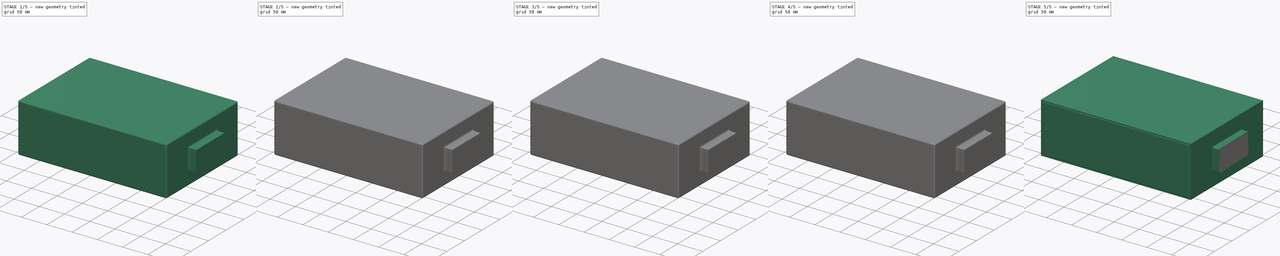
[diagram: build sequence overview — one tinted view per stage of 5, left to right]
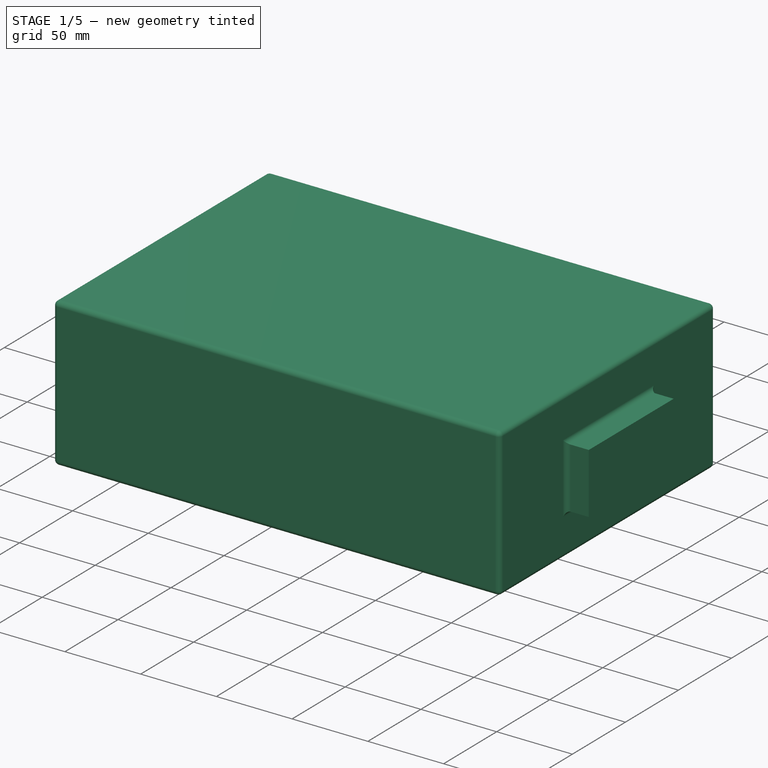
[diagram: stage 1 of 5 — iso view after this stage's code; geometry added in this stage tinted green]
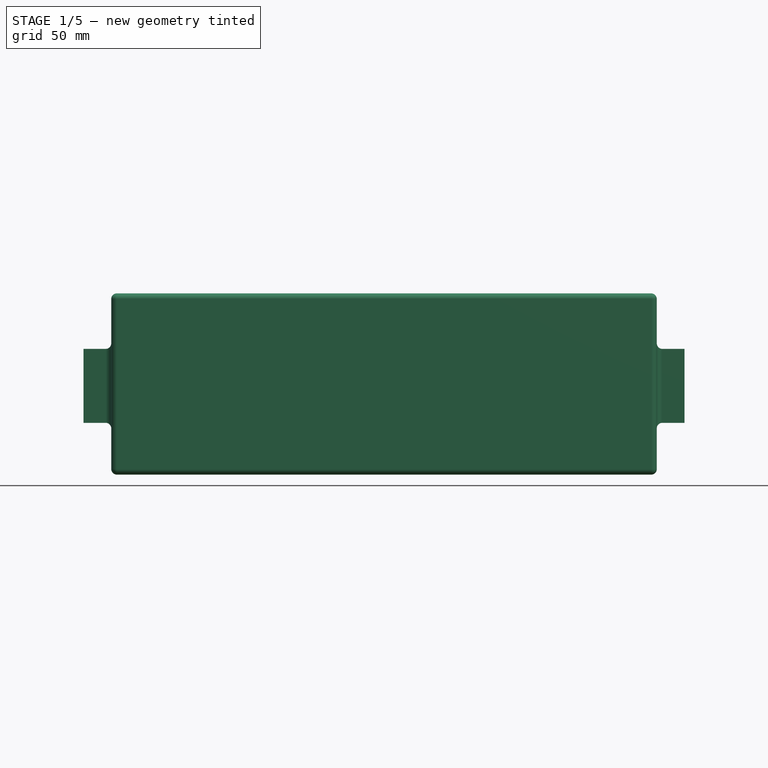
[diagram: stage 1 of 5 — front view after this stage's code; geometry added in this stage tinted green]
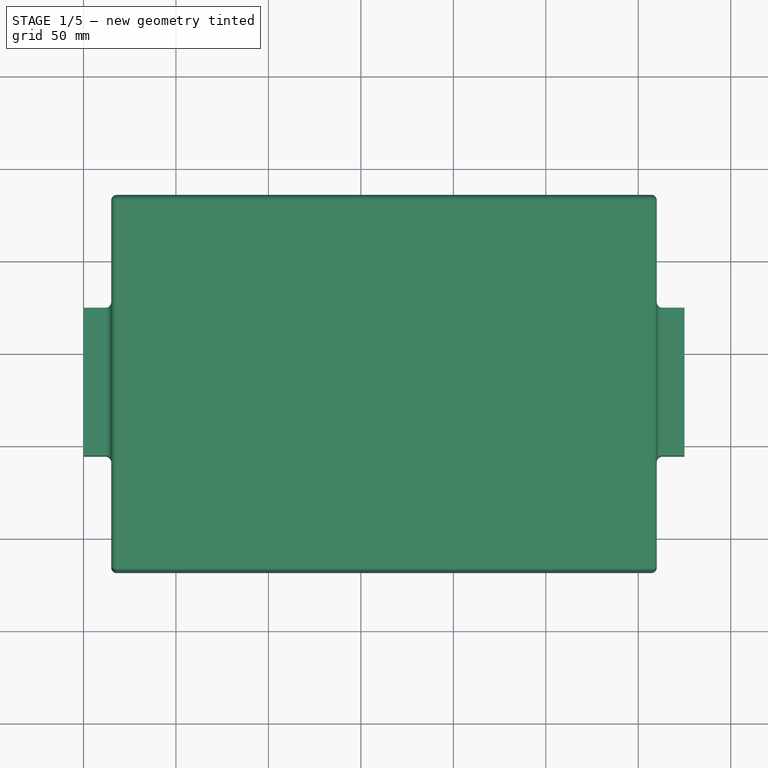
[diagram: stage 1 of 5 — top view after this stage's code; geometry added in this stage tinted green]
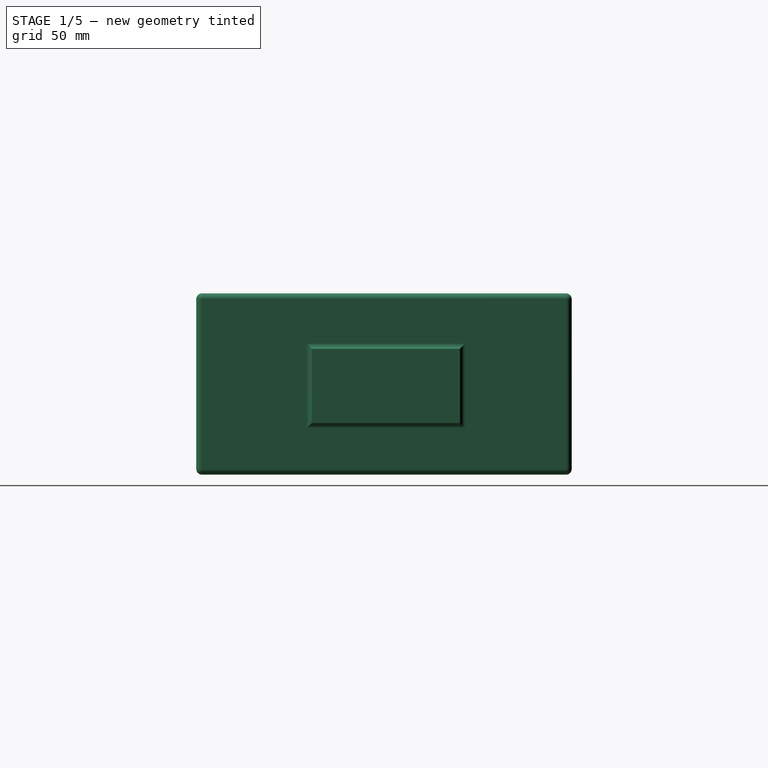
[diagram: stage 1 of 5 — right view after this stage's code; geometry added in this stage tinted green]
FCSTD DOCUMENT  (FreeCAD 1.0R39109 (Git))
Label: tesla-4680-battery-cooling
License: All rights reserved
LicenseURL: http://en.wikipedia.org/wiki/All_rights_reserved
objects: PartDesign::Body×7, Sketcher::SketchObject×4, PartDesign::FeatureBase×4, Part::FeaturePython×4, PartDesign::Pad×3, PartDesign::Fillet×2, PartDesign::Revolution×1, Part::MultiFuse×1, PartDesign::Thickness×1, Part::Cut×1
note: 49 computed .brp shape members not serialized (recipe doc carries the construction recipe); baked Part::Feature solids carry a one-line shape summary decoded from their .brp

FEATURE [PartDesign::Body] Body002  label="Körper001"
  AllowCompound = false
  Group = -> [Sketch001,Pad]
  Origin = -> Origin002
  Tip = -> Pad
FEATURE [Sketcher::SketchObject] Sketch002
  ArcFitTolerance = 1e-06
  AttachmentSupport = -> [XY_Plane003]
  FullyConstrained = true
  MakeInternals = false
  MapMode = 5
  sketch-geometry (4):
    g0: LineSegment StartX=-35 StartY=34.5 StartZ=0 EndX=-35 EndY=-168.5 EndZ=0
    g1: LineSegment StartX=-35 StartY=-168.5 StartZ=0 EndX=260 EndY=-168.5 EndZ=0
    g2: LineSegment StartX=260 StartY=-168.5 StartZ=0 EndX=260 EndY=34.5 EndZ=0
    g3: LineSegment StartX=260 StartY=34.5 StartZ=0 EndX=-35 EndY=34.5 EndZ=0
  constraints (12):
    c: Coincident(g0,g1)
    c: Coincident(g1,g2)
    c: Coincident(g2,g3)
    c: Coincident(g3,g0)
    c: Vertical(g0)
    c: Vertical(g2)
    c: Horizontal(g1)
    c: Horizontal(g3)
    c: DistanceX(g3,g3) = 295
    c: DistanceY(g2,g2) = 203
    c: Distance(g0,g-1) = 34.5
    c: Distance(g0,g-2) = 35
FEATURE [PartDesign::Pad] Pad001
  Direction = (0,0,1)
  Length = 90
  Length2 = 8
  Profile = -> Sketch002
  ReferenceAxis = -> Sketch002 [N_Axis]
  Suppressed = false
  Type = 4
FEATURE [Sketcher::SketchObject] Sketch003
  ArcFitTolerance = 1e-06
  AttachmentSupport = -> [YZ_Plane003]
  FullyConstrained = true
  MakeInternals = false
  MapMode = 5
  Placement = pos=(0,0,0) rot=(0.57735,0.57735,0.57735;2.0944rad)
  sketch-geometry (4):
    g0: LineSegment StartX=-106 StartY=60 StartZ=0 EndX=-106 EndY=20 EndZ=0
    g1: LineSegment StartX=-106 StartY=20 StartZ=0 EndX=-26 EndY=20 EndZ=0
    g2: LineSegment StartX=-26 StartY=20 StartZ=0 EndX=-26 EndY=60 EndZ=0
    g3: LineSegment StartX=-26 StartY=60 StartZ=0 EndX=-106 EndY=60 EndZ=0
  constraints (12):
    c: Coincident(g0,g1)
    c: Coincident(g1,g2)
    c: Coincident(g2,g3)
    c: Coincident(g3,g0)
    c: Vertical(g0)
    c: Vertical(g2)
    c: Horizontal(g1)
    c: Horizontal(g3)
    c: DistanceX(g3,g3) = 80
    c: DistanceY(g0,g0) = 40
    c: Distance(g2,g-1) = 60
    c: DistanceX(g1,g-1) = 26
FEATURE [PartDesign::Pad] Pad002
  BaseFeature = -> Pad001
  Direction = (1,0,0)
  Length = 275
  Length2 = 50
  Profile = -> Sketch003
  ReferenceAxis = -> Sketch003 [N_Axis]
  Suppressed = false
  Type = 4
FEATURE [PartDesign::Fillet] Fillet001
  Base = -> Pad002 [Face4,Face2,Face10,Face3,Face1,Face5]
  BaseFeature = -> Pad002
  Radius = 3
  SupportTransform = false
  Suppressed = false
  UseAllEdges = false
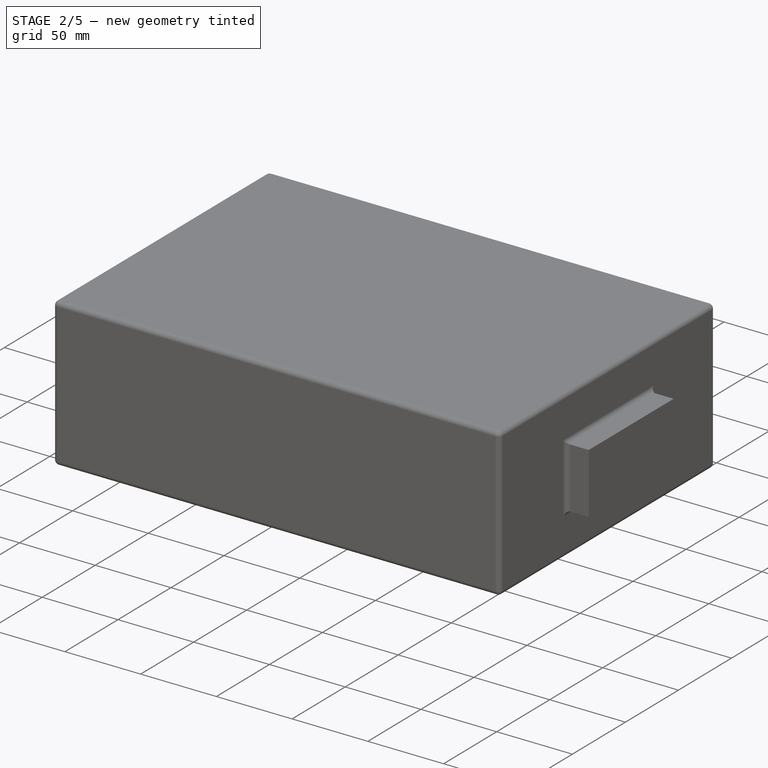
[diagram: stage 2 of 5 — iso view after this stage's code; geometry added in this stage tinted green]
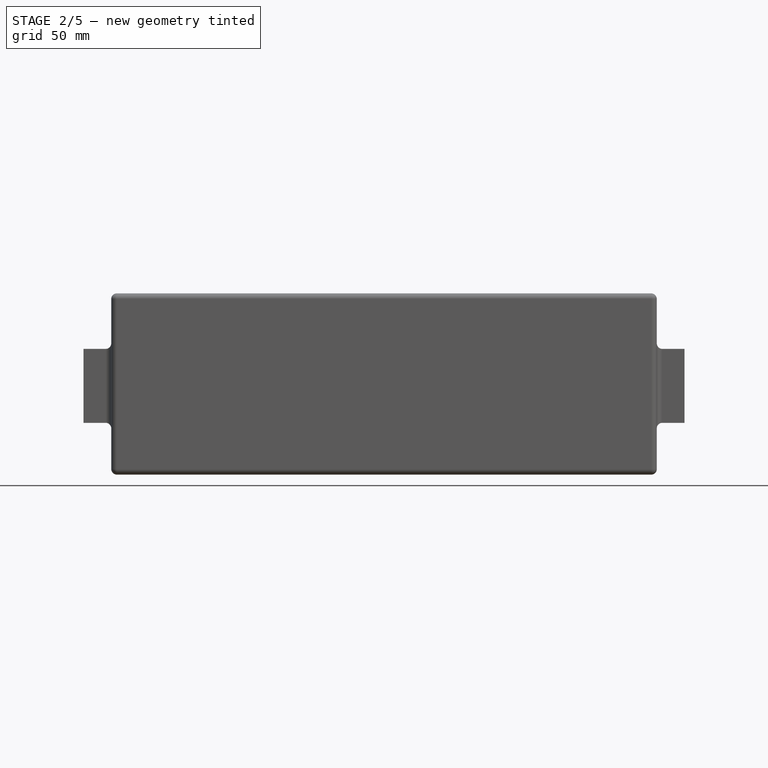
[diagram: stage 2 of 5 — front view after this stage's code; geometry added in this stage tinted green]
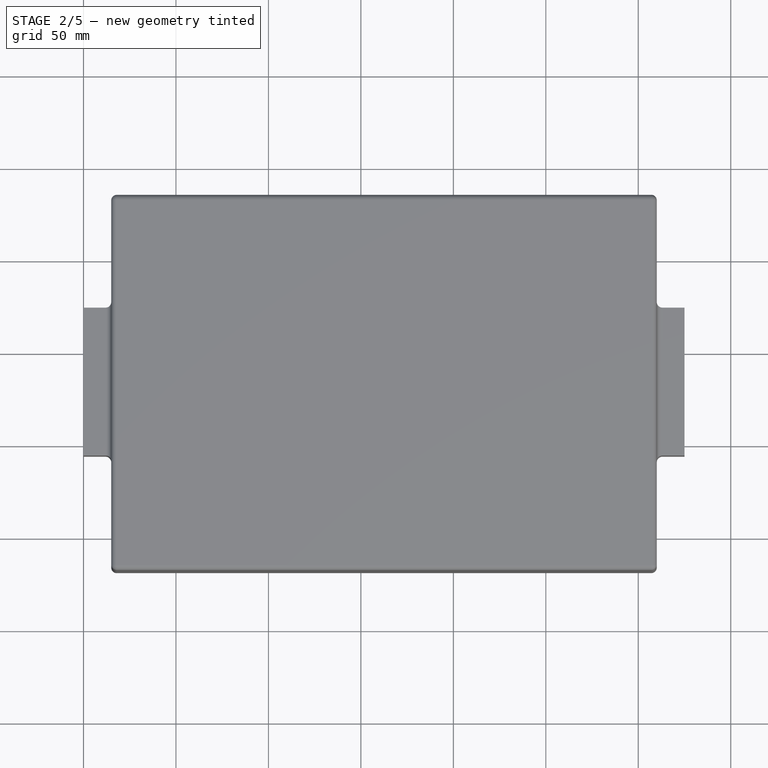
[diagram: stage 2 of 5 — top view after this stage's code; geometry added in this stage tinted green]
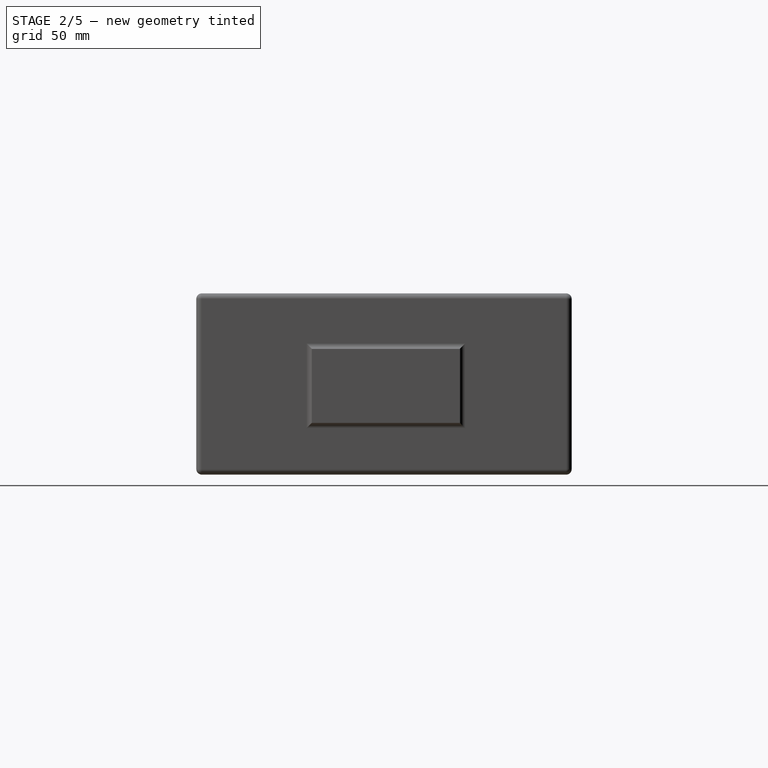
[diagram: stage 2 of 5 — right view after this stage's code; geometry added in this stage tinted green]
FEATURE [Sketcher::SketchObject] Sketch
  ArcFitTolerance = 0
  AttachmentSupport = -> [XZ_Plane]
  FullyConstrained = true
  MakeInternals = false
  MapMode = 5
  Placement = pos=(0,0,0) rot=(1,0,0;1.5708rad)
  sketch-geometry (6):
    g0: LineSegment StartX=0 StartY=0 StartZ=0 EndX=23 EndY=0 EndZ=0
    g1: LineSegment StartX=23 StartY=0 StartZ=0 EndX=23 EndY=80 EndZ=0
    g2: LineSegment StartX=23 StartY=80 StartZ=0 EndX=7 EndY=80 EndZ=0
    g3: LineSegment StartX=7 StartY=80 StartZ=0 EndX=7 EndY=82 EndZ=0
    g4: LineSegment StartX=7 StartY=82 StartZ=0 EndX=0 EndY=82 EndZ=0
    g5: LineSegment StartX=0 StartY=82 StartZ=0 EndX=0 EndY=0 EndZ=0
  constraints (17):
    c: Coincident(g-1,g0)
    c: PointOnObject(g0,g-1)
    c: Coincident(g0,g1)
    c: Vertical(g1)
    c: Coincident(g1,g2)
    c: Horizontal(g2)
    c: Coincident(g2,g3)
    c: Vertical(g3)
    c: Coincident(g3,g4)
    c: Horizontal(g4)
    c: Coincident(g4,g5)
    c: Coincident(g5,g0)
    c: Vertical(g5)
    c: DistanceX(g4,g4) = 7
    c: DistanceX(g0,g0) = 23
    c: DistanceY(g1,g1) = 80
    c: DistanceY(g3,g3) = 2
FEATURE [PartDesign::Revolution] Revolution
  Angle = 360
  Angle2 = 60
  Axis = (0,2e-16,1)
  Base = (0,0,0)
  Placement = pos=(0,0,0) rot=(1,0,0;1.5708rad)
  Profile = -> Sketch
  ReferenceAxis = -> Sketch [V_Axis]
  Reversed = true
  Suppressed = false
  Type = 0
FEATURE [PartDesign::Fillet] Fillet
  Base = -> Revolution [Edge2,Edge1]
  BaseFeature = -> Revolution
  Placement = pos=(0,0,0) rot=(1,0,0;1.5708rad)
  Radius = 2
  SupportTransform = false
  Suppressed = false
  UseAllEdges = false
FEATURE [PartDesign::Body] Body005
  AllowCompound = false
  Group = -> [Clone005]
  Origin = -> Origin005
  Tip = -> Clone005
FEATURE [PartDesign::FeatureBase] Clone006
  BaseFeature = -> Body003
  Suppressed = false
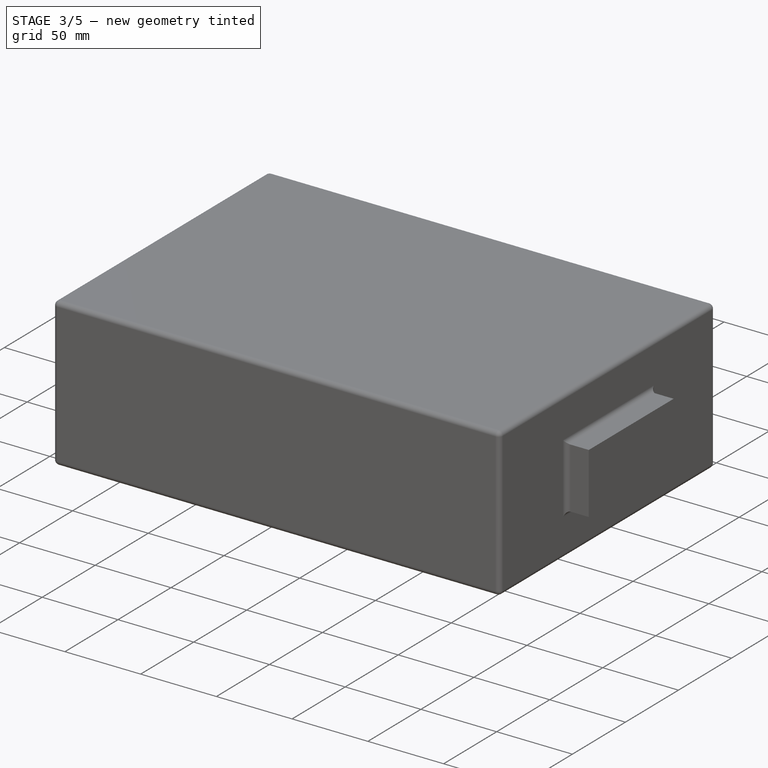
[diagram: stage 3 of 5 — iso view after this stage's code; geometry added in this stage tinted green]
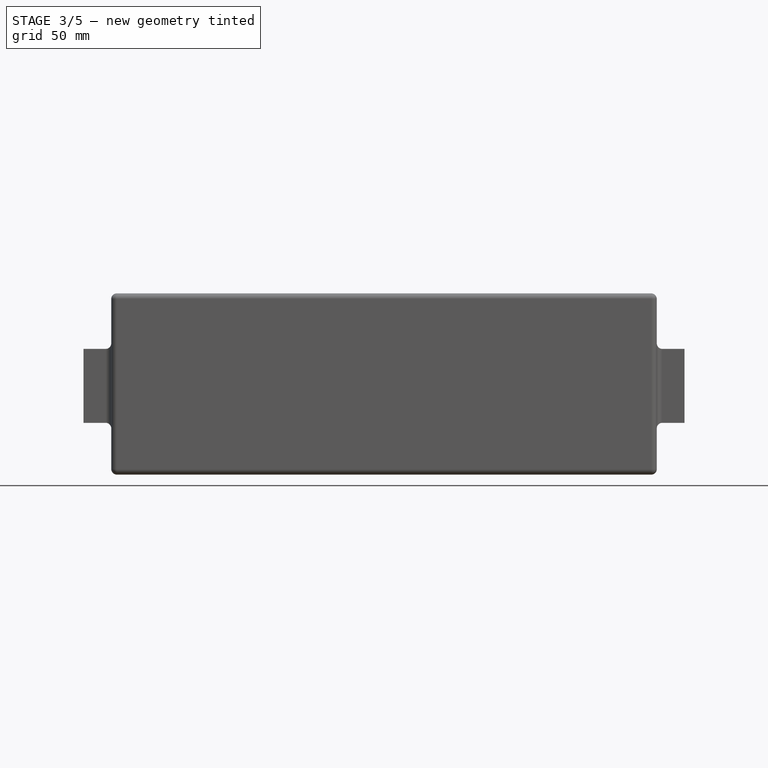
[diagram: stage 3 of 5 — front view after this stage's code; geometry added in this stage tinted green]
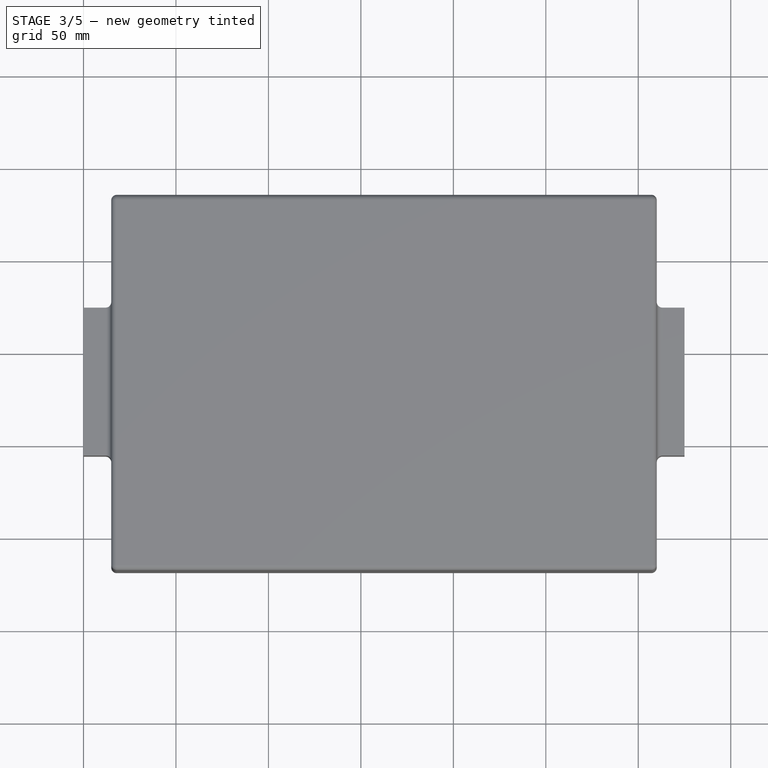
[diagram: stage 3 of 5 — top view after this stage's code; geometry added in this stage tinted green]
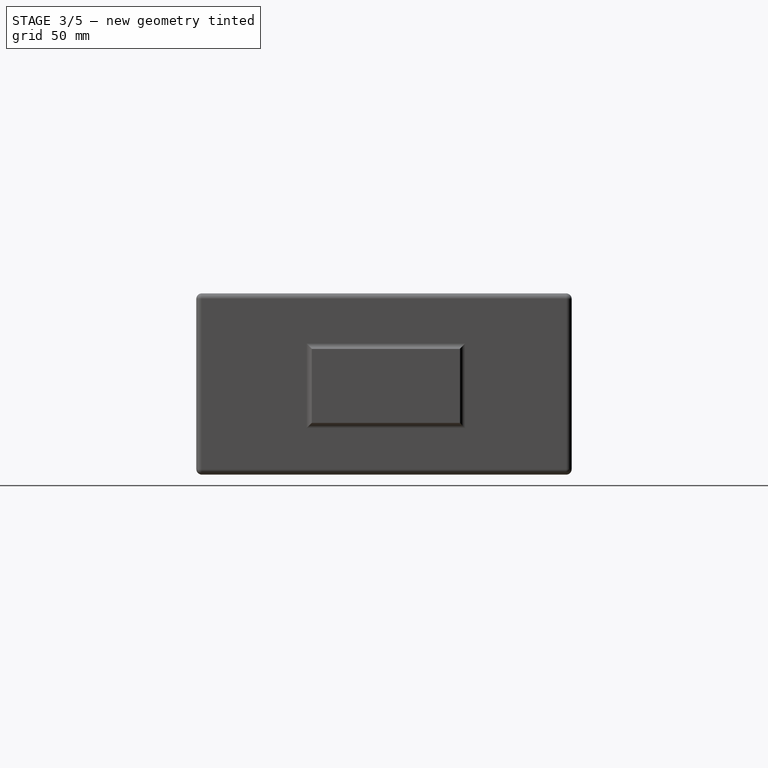
[diagram: stage 3 of 5 — right view after this stage's code; geometry added in this stage tinted green]
FEATURE [PartDesign::Body] Body  label="Körper"
  AllowCompound = false
  Group = -> [Sketch,Revolution,Fillet]
  Origin = -> Origin
  Tip = -> Fillet
FEATURE [PartDesign::FeatureBase] Clone
  BaseFeature = -> Body
  Suppressed = false
FEATURE [PartDesign::Body] Body001
  AllowCompound = false
  Group = -> [Clone]
  Origin = -> Origin001
  Tip = -> Clone
FEATURE [Part::FeaturePython] Array  # Draft array (typed FeaturePython)
  AlwaysSyncPlacement = false
  Angle = 360
  ArrayType = 0
  Axis = (0,0,1)
  Base = -> Body001
  Center = (0,0,0)
  Count = 5
  ExpandArray = false
  Fuse = false
  IntervalAxis = (0,0,0)
  IntervalX = (50,0,0)
  IntervalY = (0,100,0)
  IntervalZ = (0,0,100)
  NumberCircles = 3
  NumberPolar = 5
  NumberX = 5
  NumberY = 1
  NumberZ = 1
  PlacementList = 5 placements: arithmetic series from (0,0,0) step (50,0,0) to (200,0,0)
  RadialDistance = 50
  ScaleList = (5) [(1,1,1),(1,1,1),(1,1,1),(1,1,1),(1,1,1)]
  Symmetry = 1
  TangentialDistance = 25
FEATURE [Part::FeaturePython] Clone001  label="Array001"  # Draft clone (typed FeaturePython)
  AttacherType = Attacher::AttachEngine3D
  Fuse = false
  Objects = -> [Array]
  Placement = pos=(25,-44,0) rot=(0,0,1;0rad)
  Scale = (1,1,1)
FEATURE [Part::FeaturePython] Clone002  label="Array002"  # Draft clone (typed FeaturePython)
  AttacherType = Attacher::AttachEngine3D
  Fuse = false
  Objects = -> [Clone001]
  Placement = pos=(0,-89,0) rot=(0,0,1;0rad)
  Scale = (1,1,1)
FEATURE [Part::FeaturePython] Clone003  label="Array003"  # Draft clone (typed FeaturePython)
  AttacherType = Attacher::AttachEngine3D
  Fuse = false
  Objects = -> [Clone001]
  Placement = pos=(25,-135,0) rot=(0,0,1;0rad)
  Scale = (1,1,1)
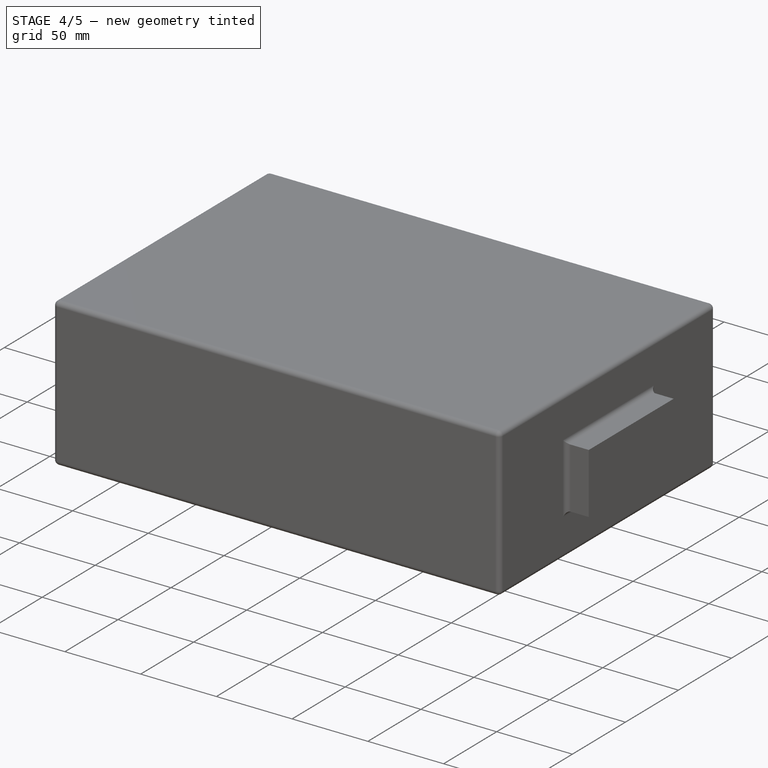
[diagram: stage 4 of 5 — iso view after this stage's code; geometry added in this stage tinted green]
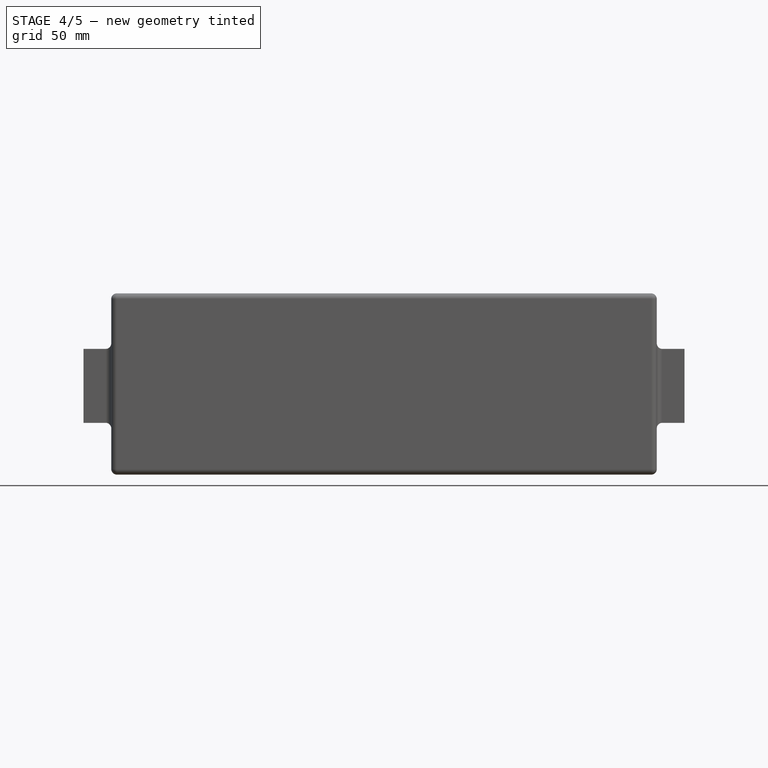
[diagram: stage 4 of 5 — front view after this stage's code; geometry added in this stage tinted green]
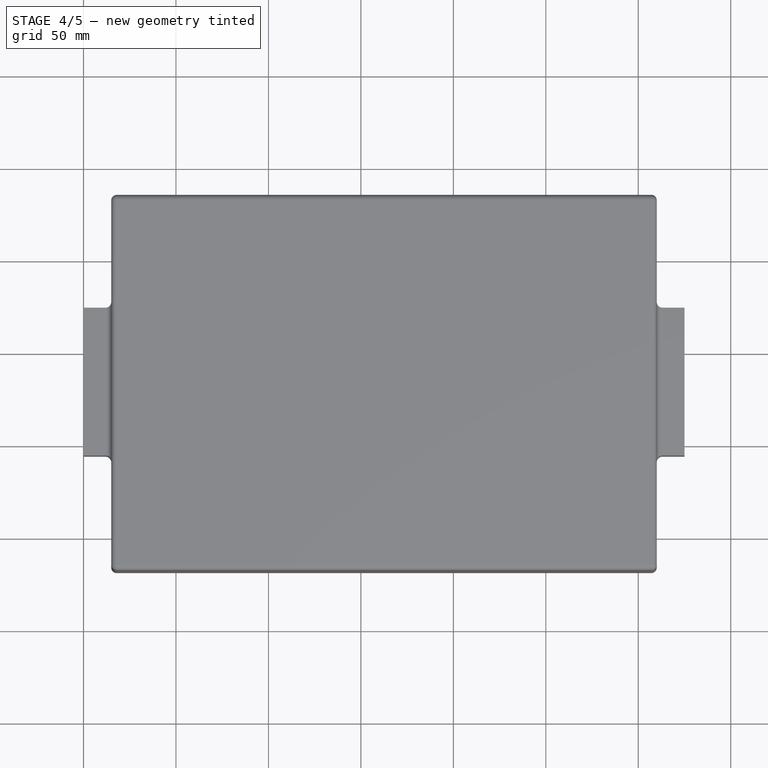
[diagram: stage 4 of 5 — top view after this stage's code; geometry added in this stage tinted green]
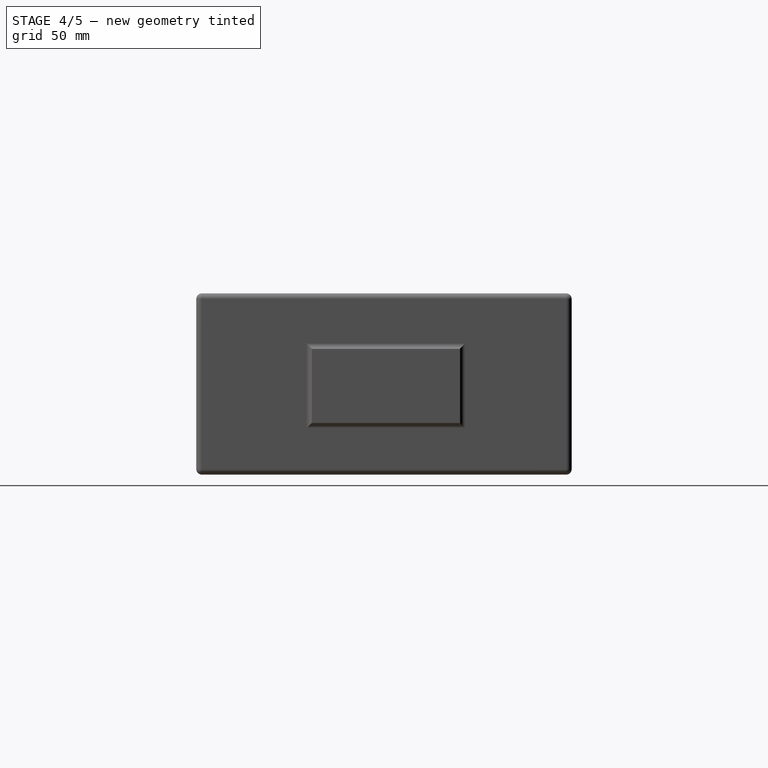
[diagram: stage 4 of 5 — right view after this stage's code; geometry added in this stage tinted green]
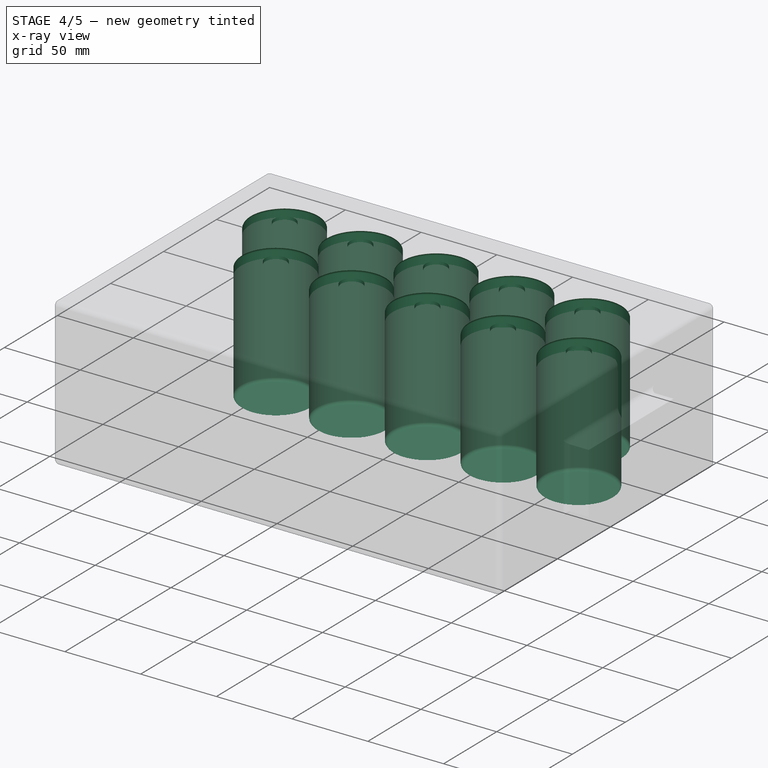
[diagram: stage 4 of 5 — x-ray composite at the iso view; earlier geometry ghosted, this stage's added geometry solid]
FEATURE [PartDesign::Body] Body003  label="Körper002"
  AllowCompound = false
  Group = -> [Sketch002,Pad001,Sketch003,Pad002,Fillet001]
  Origin = -> Origin003
  Tip = -> Fillet001
FEATURE [Part::MultiFuse] Fusion  label="batterien"
  Shapes = -> [Array,Clone001,Clone002,Clone003]
FEATURE [PartDesign::Body] Body004  label="gehause"
  AllowCompound = false
  Group = -> [Clone004,Thickness]
  Origin = -> Origin004
  Tip = -> Thickness
FEATURE [PartDesign::FeatureBase] Clone005
  BaseFeature = -> Fusion
  Suppressed = false
FEATURE [PartDesign::Body] Body006
  AllowCompound = false
  Group = -> [Clone006]
  Origin = -> Origin006
  Tip = -> Clone006
FEATURE [Part::Cut] Cut  label="fluid-domain"
  Base = -> Body006
  Tool = -> Body005
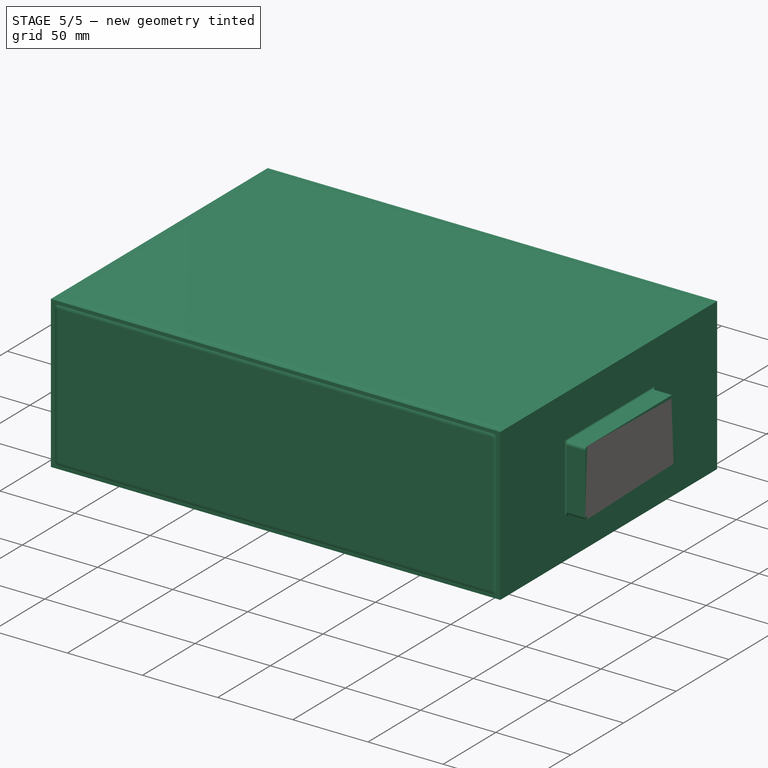
[diagram: stage 5 of 5 — iso view after this stage's code; geometry added in this stage tinted green]
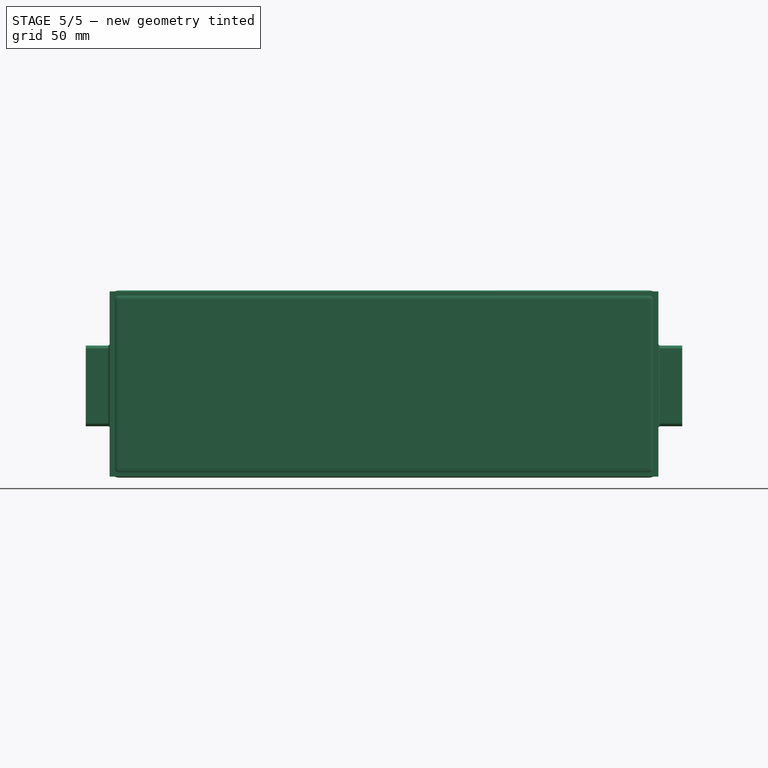
[diagram: stage 5 of 5 — front view after this stage's code; geometry added in this stage tinted green]
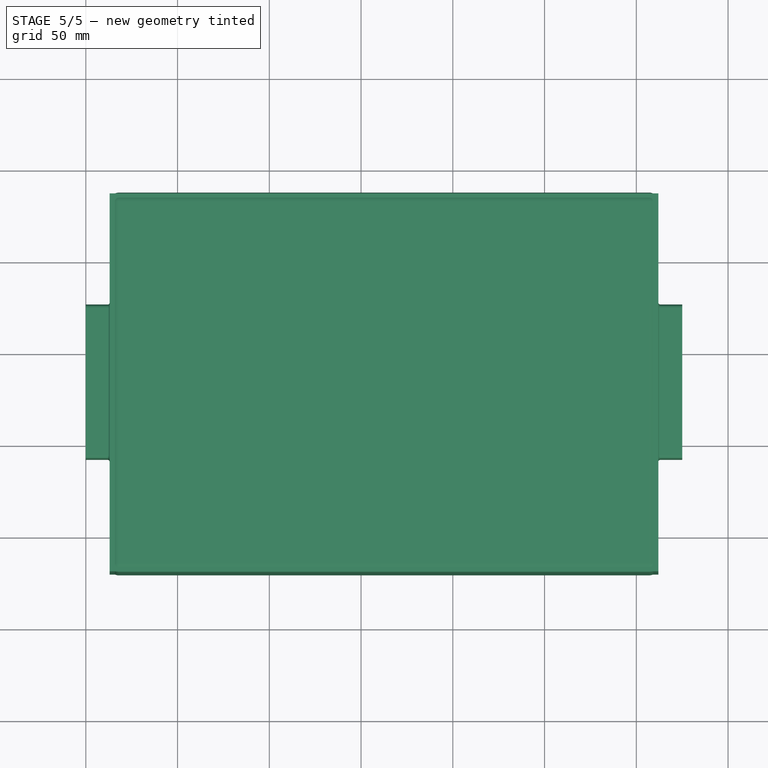
[diagram: stage 5 of 5 — top view after this stage's code; geometry added in this stage tinted green]
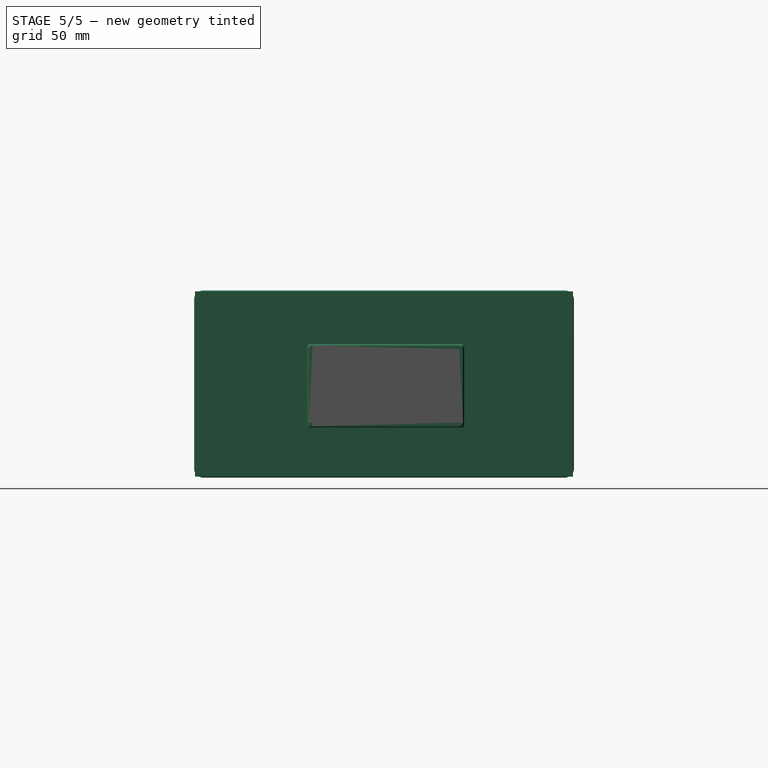
[diagram: stage 5 of 5 — right view after this stage's code; geometry added in this stage tinted green]
FEATURE [Sketcher::SketchObject] Sketch001
  ArcFitTolerance = 1e-06
  AttachmentSupport = -> [XY_Plane002]
  FullyConstrained = true
  MakeInternals = false
  MapMode = 5
  sketch-geometry (4):
    g0: LineSegment StartX=-37 StartY=36 StartZ=0 EndX=-37 EndY=-170 EndZ=0
    g1: LineSegment StartX=-37 StartY=-170 StartZ=0 EndX=262 EndY=-170 EndZ=0
    g2: LineSegment StartX=262 StartY=-170 StartZ=0 EndX=262 EndY=36 EndZ=0
    g3: LineSegment StartX=262 StartY=36 StartZ=0 EndX=-37 EndY=36 EndZ=0
  constraints (12):
    c: Coincident(g0,g1)
    c: Coincident(g1,g2)
    c: Coincident(g2,g3)
    c: Coincident(g3,g0)
    c: Vertical(g0)
    c: Vertical(g2)
    c: Horizontal(g1)
    c: Horizontal(g3)
    c: Distance(g0,g-2) = 37
    c: Distance(g-1,g3) = 36
    c: DistanceX(g3,g3) = 299
    c: DistanceY(g2,g2) = 206
FEATURE [PartDesign::Pad] Pad
  Direction = (0,0,1)
  Length = 91.5
  Length2 = 9.5
  Profile = -> Sketch001
  ReferenceAxis = -> Sketch001 [N_Axis]
  Suppressed = false
  Type = 4
FEATURE [PartDesign::FeatureBase] Clone004
  BaseFeature = -> Body003
  Suppressed = false
FEATURE [PartDesign::Thickness] Thickness
  Base = -> Clone004 [Face44,Face30]
  BaseFeature = -> Clone004
  Intersection = false
  Join = 0
  Mode = 0
  SupportTransform = false
  Suppressed = false
  Value = 2
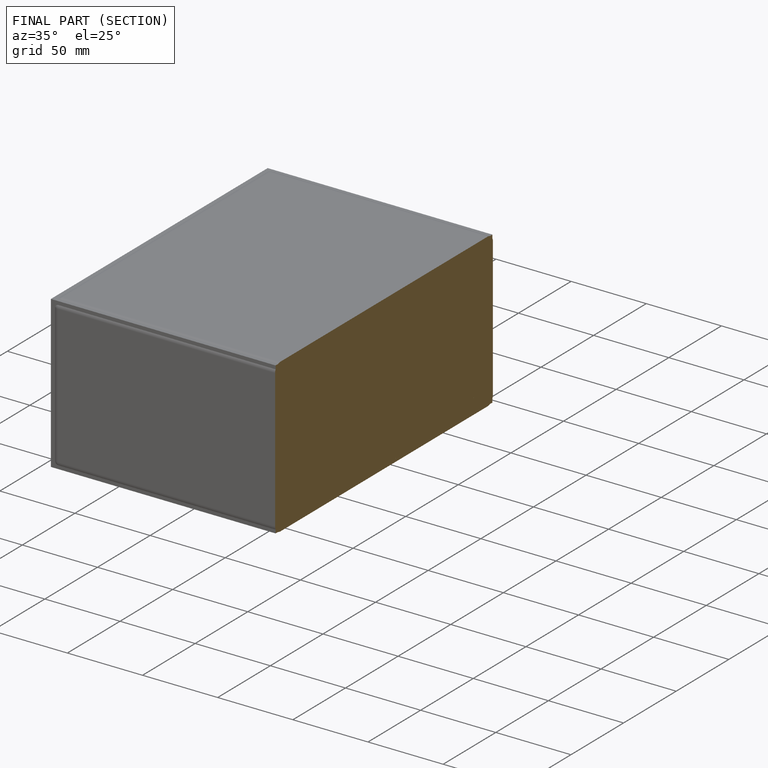
[diagram: finished part — half-section view (interior)]
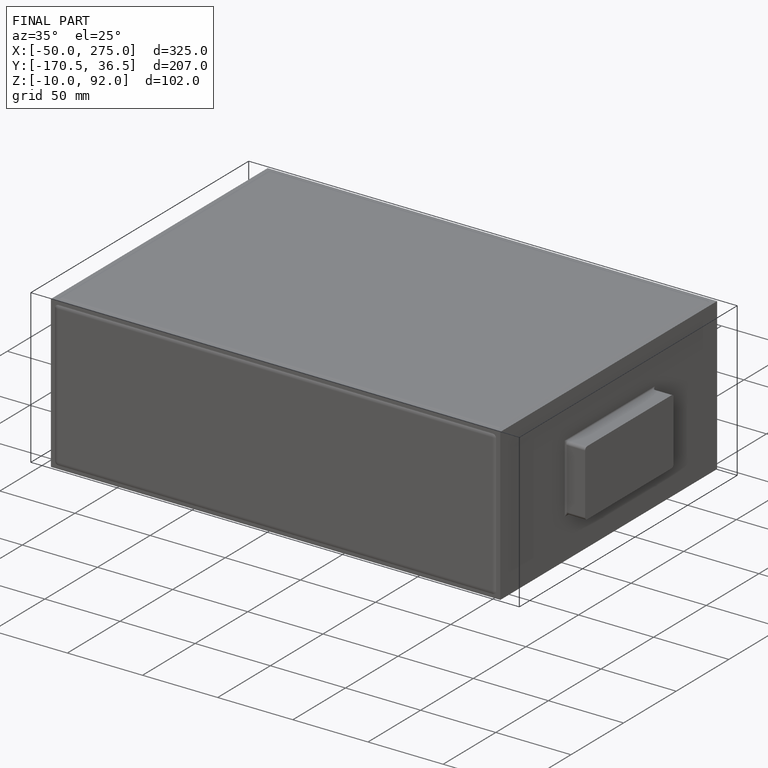
[diagram: finished part — iso view with bounding-box wireframe]
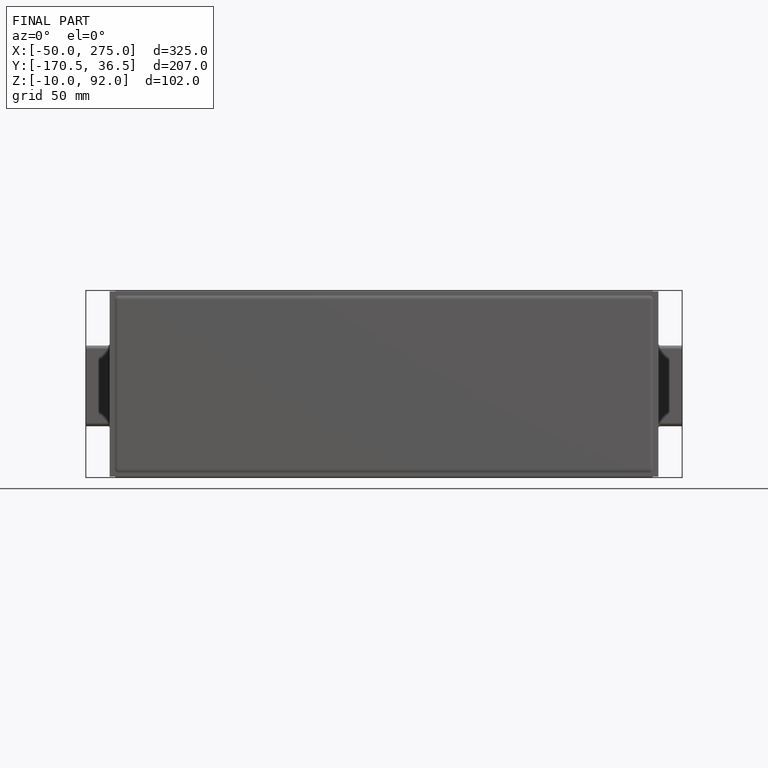
[diagram: finished part — front view with bounding-box wireframe]
